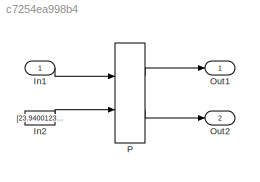
MODEL slx_c7254ea998b4
KIND model
CONFIG AbsTol = auto
CONFIG EnableMultiTasking = off
CONFIG FixedStep = auto
CONFIG MaxStep = auto
CONFIG MinStep = auto
CONFIG RelTol = 1e-3
CONFIG SampleTimeConstraint = Unconstrained
CONFIG Solver = FixedStepDiscrete
CONFIG SolverName = FixedStepDiscrete
CONFIG StartTime = 0.0
CONFIG StopTime = 10.0
BLOCK [Inport] In1
  IconDisplay = Port number
  OutDataTypeStr = single
  PortDimensions = 1
BLOCK [Constant] In2
  Value = [23.9400123021477 25.4400123021477 26.9400123021477 28.4400123021477 29.9400123021477 31.4400123021477 32.9400123021477 34.4400123021477 35.9400123021477 37.4400123021477 38.9400123021477 40.4400123021477 41.9400123021477 43.4400123021477 44.9400123021477 46.4400123021477 47.9400123021477 49.4400123021477 50.9400123021477 52.4400123021477 53.9400123021477]
BLOCK [Outport] Out1
  IconDisplay = Port number
BLOCK [Outport] Out2
  IconDisplay = Port number
  Port = 2
BLOCK [PreLookup] P
  BreakpointDataTypeStr = uint8
  BreakpointsData = [10:10:110]
  BreakpointsDataSource = Input port
  FractionDataTypeStr = single
  IndexDataTypeStr = uint16
  InputPortMap = u0,p1
  Ports = [2, 2]
  RndMeth = Convergent
  UseLastBreakpoint = on
LINE In1:1 -> P:1
LINE In2:1 -> P:2
LINE P:1 -> Out1:1
LINE P:2 -> Out2:1
